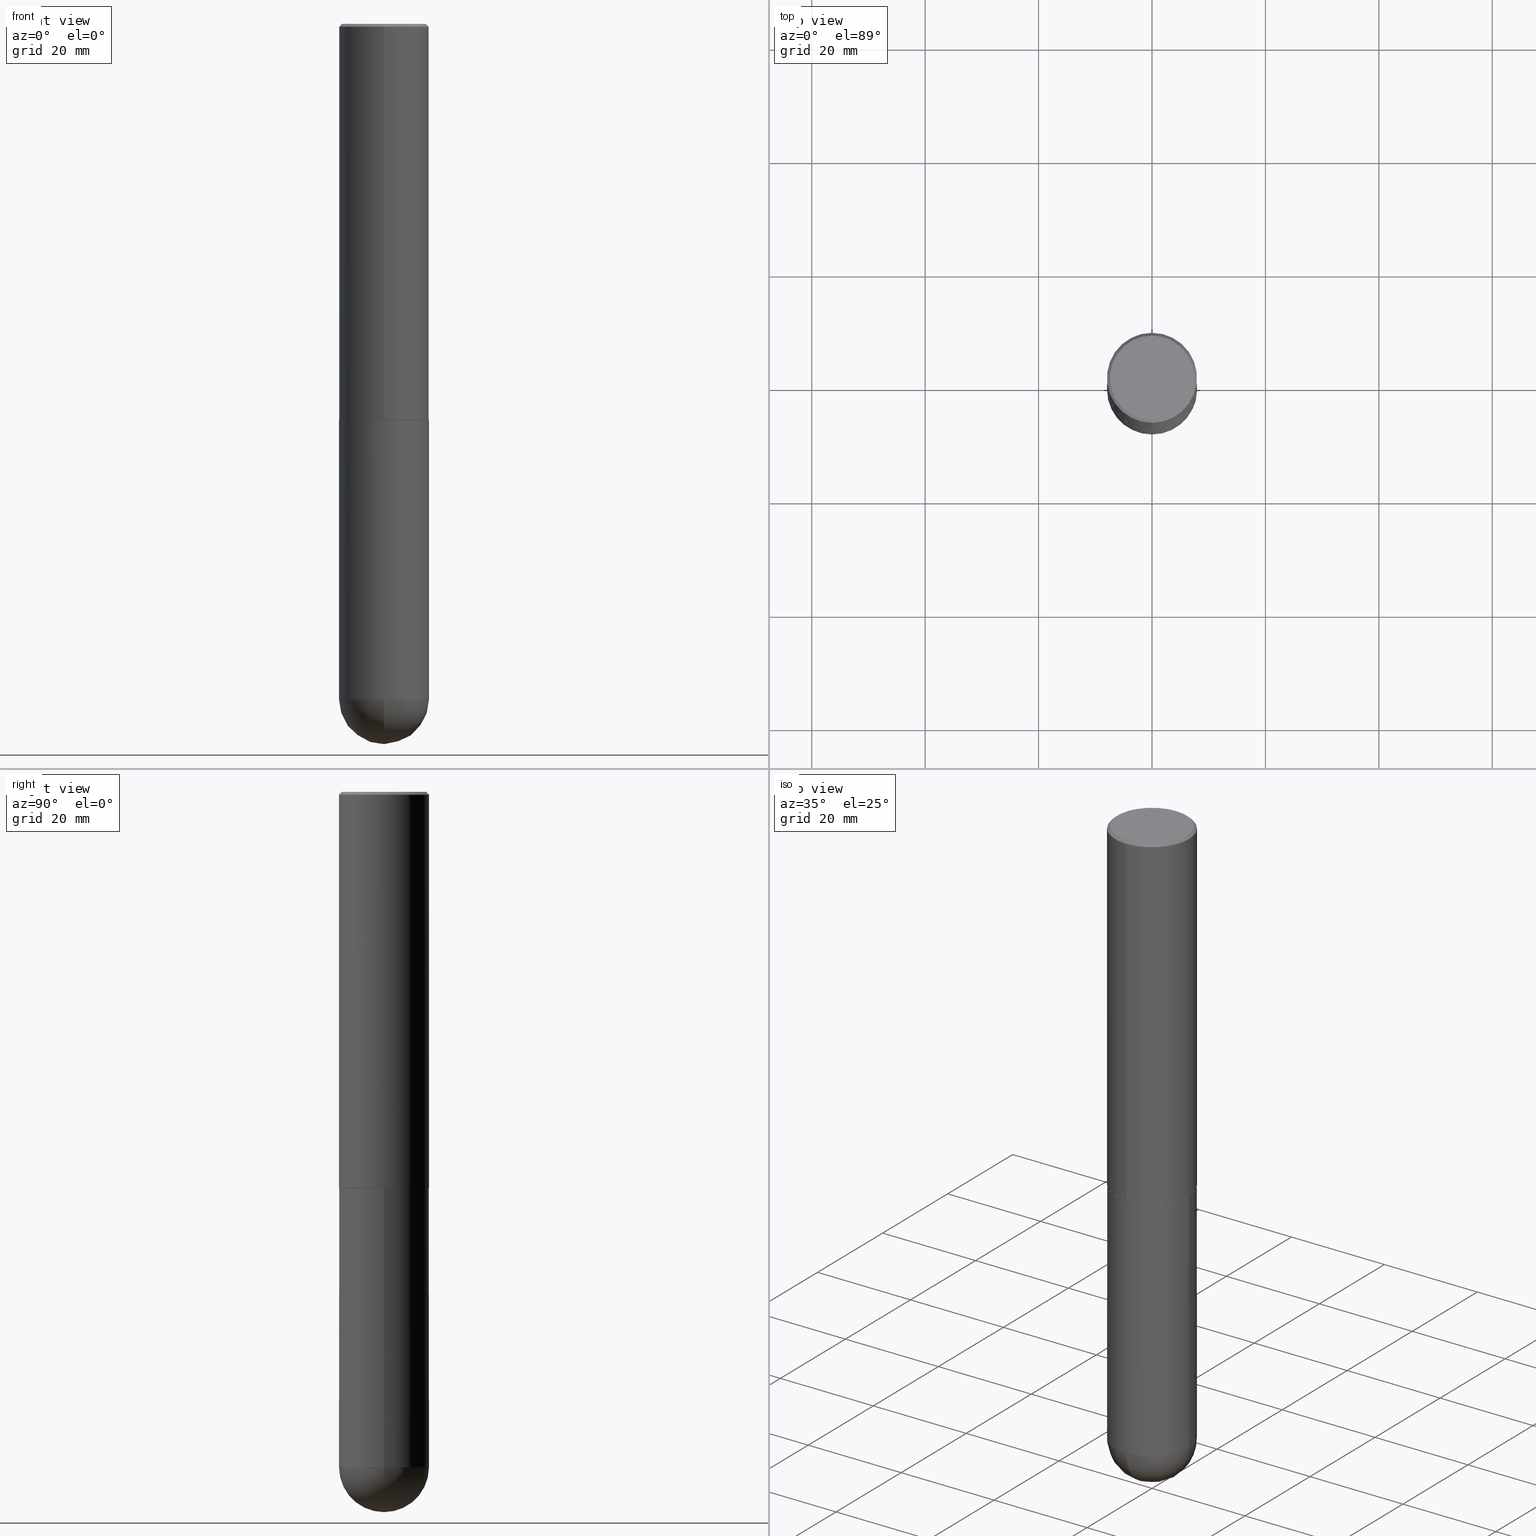
[diagram: canonical four-view strip — front | top / right | iso, engineering-drawing reading convention]
A machine part, canonical four-view strip (front | top / right | iso — engineering-drawing reading convention). The complete STEP part file that produces these views, byte-faithful:
ISO-10303-21;
HEADER;
FILE_DESCRIPTION (( 'STEP AP203' ),
    '1' );
FILE_NAME ('70462.STEP',
    '2024-04-10T12:33:35',
    ( '' ),
    ( '' ),
    'SwSTEP 2.0',
    'SolidWorks 2023',
    '' );
FILE_SCHEMA (( 'CONFIG_CONTROL_DESIGN' ));
ENDSEC;

DATA;
#1 = ORIENTED_EDGE ( 'NONE', *, *, #77, .F. ) ;
#2 = DIRECTION ( 'NONE',  ( 6.982962677686265133E-15, 1.000000000000000000, -3.496765431890256920E-15 ) ) ;
#3 = EDGE_CURVE ( 'NONE', #7, #248, #384, .T. ) ;
#4 = CIRCLE ( 'NONE', #347, 0.3125000000000000000 ) ;
#5 = SECURITY_CLASSIFICATION ( '', '', #247 ) ;
#6 = CLOSED_SHELL ( 'NONE', ( #59, #25, #213, #265, #199, #132, #67, #14 ) ) ;
#7 = VERTEX_POINT ( 'NONE', #350 ) ;
#8 = CARTESIAN_POINT ( 'NONE',  ( 6.723917881373410084E-29, -9.603179498271451211E-15, -2.749999999999999556 ) ) ;
#9 =( NAMED_UNIT ( * ) PLANE_ANGLE_UNIT ( ) SI_UNIT ( $, .RADIAN. ) );
#10 = CARTESIAN_POINT ( 'NONE',  ( 4.066165536435923517E-45, -5.807345985626986545E-31, -1.663011866366634946E-16 ) ) ;
#11 = AXIS2_PLACEMENT_3D ( 'NONE', #232, #190, #32 ) ;
#12 = FACE_OUTER_BOUND ( 'NONE', #181, .T. ) ;
#13 = EDGE_CURVE ( 'NONE', #185, #41, #212, .T. ) ;
#14 = ADVANCED_FACE ( 'NONE', ( #258 ), #315, .F. ) ;
#15 = CONICAL_SURFACE ( 'NONE', #11, 0.3114999999999999991, 0.7853981633977896726 ) ;
#16 = FACE_OUTER_BOUND ( 'NONE', #373, .T. ) ;
#17 = DATE_TIME_ROLE ( 'classification_date' ) ;
#18 = DIRECTION ( 'NONE',  ( -6.982962677686265922E-15, -1.000000000000000000, 3.492065272098710428E-15 ) ) ;
#19 = AXIS2_PLACEMENT_3D ( 'NONE', #251, #277, #366 ) ;
#20 = ORIENTED_EDGE ( 'NONE', *, *, #148, .T. ) ;
#21 = DIRECTION ( 'NONE',  ( -2.445468806185136597E-29, 3.491481338843145583E-15, 1.000000000000000000 ) ) ;
#22 = COORDINATED_UNIVERSAL_TIME_OFFSET ( 5, 0, .BEHIND. ) ;
#23 = CARTESIAN_POINT ( 'NONE',  ( -2.175192874099204491E-15, -0.3115000000000096581, -2.749999999999998224 ) ) ;
#24 = FACE_OUTER_BOUND ( 'NONE', #36, .T. ) ;
#25 = ADVANCED_FACE ( 'NONE', ( #24 ), #149, .T. ) ;
#26 = CARTESIAN_POINT ( 'NONE',  ( -0.3125000000000000000, -1.076350017957263365E-14, -2.750000000000000000 ) ) ;
#27 = AXIS2_PLACEMENT_3D ( 'NONE', #35, #124, #328 ) ;
#28 = DIRECTION ( 'NONE',  ( 6.982962677686265922E-15, 1.000000000000000000, -3.492065272098710033E-15 ) ) ;
#29 = CARTESIAN_POINT ( 'NONE',  ( 0.3125000000000000000, -2.182175836776958347E-15, 1.523805242436230075E-29 ) ) ;
#30 = ORIENTED_EDGE ( 'NONE', *, *, #359, .F. ) ;
#31 = LINE ( 'NONE', #306, #134 ) ;
#32 = DIRECTION ( 'NONE',  ( -6.982962677686265922E-15, -1.000000000000000000, 3.507991003100177457E-15 ) ) ;
#33 = VERTEX_POINT ( 'NONE', #52 ) ;
#34 = DIRECTION ( 'NONE',  ( -6.982962677686265922E-15, -1.000000000000000000, 3.507991003100177457E-15 ) ) ;
#35 = CARTESIAN_POINT ( 'NONE',  ( 1.146313502899282780E-28, -1.636631877582724203E-14, -4.687500000000000000 ) ) ;
#36 = EDGE_LOOP ( 'NONE', ( #150, #262, #244, #145 ) ) ;
#37 = PRODUCT ( '70462', '70462', '', ( #74 ) ) ;
#38 = CC_DESIGN_PERSON_AND_ORGANIZATION_ASSIGNMENT ( #107, #336, ( #50 ) ) ;
#39 = CIRCLE ( 'NONE', #314, 0.2925000000000001488 ) ;
#40 = AXIS2_PLACEMENT_3D ( 'NONE', #298, #399, #303 ) ;
#41 = VERTEX_POINT ( 'NONE', #147 ) ;
#42 = CIRCLE ( 'NONE', #155, 0.3125000000000000000 ) ;
#43 = ORGANIZATION ( 'UNSPECIFIED', 'UNSPECIFIED', '' ) ;
#44 = APPROVAL_DATE_TIME ( #278, #99 ) ;
#45 = DIRECTION ( 'NONE',  ( 2.445061047772150115E-29, -3.492065272098710033E-15, -1.000000000000000000 ) ) ;
#46 = CC_DESIGN_PERSON_AND_ORGANIZATION_ASSIGNMENT ( #393, #208, ( #162 ) ) ;
#47 = PERSON_AND_ORGANIZATION_ROLE ( 'classification_officer' ) ;
#48 = AXIS2_PLACEMENT_3D ( 'NONE', #8, #105, #365 ) ;
#49 = EDGE_CURVE ( 'NONE', #224, #58, #211, .T. ) ;
#50 = PRODUCT_DEFINITION_FORMATION_WITH_SPECIFIED_SOURCE ( 'ANY', '', #37, .NOT_KNOWN. ) ;
#51 = DIRECTION ( 'NONE',  ( -2.445468806185136597E-29, 3.491481338843145583E-15, 1.000000000000000000 ) ) ;
#52 = CARTESIAN_POINT ( 'NONE',  ( -2.220446049250200668E-15, -0.3125000000000168199, -4.687499999999998224 ) ) ;
#53 = DATE_AND_TIME ( #103, #271 ) ;
#54 = SPHERICAL_SURFACE ( 'NONE', #299, 0.3125000000000002776 ) ;
#55 = VERTEX_POINT ( 'NONE', #26 ) ;
#56 = CARTESIAN_POINT ( 'NONE',  ( 2.112346210000096232E-15, 0.2925000000000001488, -1.187730278725536658E-15 ) ) ;
#57 = AXIS2_PLACEMENT_3D ( 'NONE', #152, #21, #126 ) ;
#58 = VERTEX_POINT ( 'NONE', #56 ) ;
#59 = ADVANCED_FACE ( 'NONE', ( #184 ), #228, .T. ) ;
#60 = CARTESIAN_POINT ( 'NONE',  ( 4.066165536435923517E-45, -5.807345985626986545E-31, -1.663011866366634946E-16 ) ) ;
#61 = CARTESIAN_POINT ( 'NONE',  ( 2.182175836776958741E-15, 0.3124999999999999445, -0.02000000000000116268 ) ) ;
#62 = DIRECTION ( 'NONE',  ( 6.982962677686265922E-15, 1.000000000000000000, -3.496765431890253764E-15 ) ) ;
#63 = ORIENTED_EDGE ( 'NONE', *, *, #131, .T. ) ;
#64 = DIRECTION ( 'NONE',  ( -2.445061047772150115E-29, 3.492065272098710033E-15, 1.000000000000000000 ) ) ;
#65 = ORIENTED_EDGE ( 'NONE', *, *, #329, .T. ) ;
#66 = CARTESIAN_POINT ( 'NONE',  ( -2.143905624303602824E-15, -0.3125000000000000555, -0.01999999999999897693 ) ) ;
#67 = ADVANCED_FACE ( 'NONE', ( #343 ), #286, .F. ) ;
#68 = DIRECTION ( 'NONE',  ( 4.937700262164541731E-15, 0.7071067811865442421, -0.7071067811865507924 ) ) ;
#69 = PERSON_AND_ORGANIZATION ( #175, #43 ) ;
#70 = CARTESIAN_POINT ( 'NONE',  ( 0.3125000000000000000, -1.516612206559990666E-14, -4.687500000000000000 ) ) ;
#71 = ADVANCED_FACE ( 'NONE', ( #377 ), #88, .T. ) ;
#72 = PERSON_AND_ORGANIZATION ( #175, #43 ) ;
#73 = CYLINDRICAL_SURFACE ( 'NONE', #146, 0.3125000000000002776 ) ;
#74 = MECHANICAL_CONTEXT ( 'NONE', #167, 'mechanical' ) ;
#75 = CARTESIAN_POINT ( 'NONE',  ( 1.113201525107894267E-28, -1.684050114396729706E-14, -4.687500000000000000 ) ) ;
#76 = CARTESIAN_POINT ( 'NONE',  ( -0.3125000000000000000, -1.076350017957263681E-14, -4.687500000000000000 ) ) ;
#77 = EDGE_CURVE ( 'NONE', #115, #55, #187, .T. ) ;
#78 = APPLICATION_CONTEXT ( 'configuration controlled 3d designs of mechanical parts and assemblies' ) ;
#79 =( GEOMETRIC_REPRESENTATION_CONTEXT ( 3 ) GLOBAL_UNCERTAINTY_ASSIGNED_CONTEXT ( ( #274 ) ) GLOBAL_UNIT_ASSIGNED_CONTEXT ( ( #293, #9, #97 ) ) REPRESENTATION_CONTEXT ( 'NONE', 'WORKASPACE' ) );
#80 = CALENDAR_DATE ( 2024, 10, 4 ) ;
#81 = FACE_OUTER_BOUND ( 'NONE', #226, .T. ) ;
#82 = FACE_OUTER_BOUND ( 'NONE', #289, .T. ) ;
#83 = VERTEX_POINT ( 'NONE', #282 ) ;
#84 = ORIENTED_EDGE ( 'NONE', *, *, #253, .F. ) ;
#85 = PRODUCT_DEFINITION_SHAPE ( 'NONE', 'NONE',  #162 ) ;
#86 = AXIS2_PLACEMENT_3D ( 'NONE', #352, #382, #2 ) ;
#87 = PRODUCT_RELATED_PRODUCT_CATEGORY ( 'detail', '', ( #37 ) ) ;
#88 = SPHERICAL_SURFACE ( 'NONE', #330, 0.3125000000000002776 ) ;
#89 = ORIENTED_EDGE ( 'NONE', *, *, #117, .T. ) ;
#90 = CARTESIAN_POINT ( 'NONE',  ( 6.723917881373410084E-29, -9.603179498271451211E-15, -2.749999999999999556 ) ) ;
#91 = ORIENTED_EDGE ( 'NONE', *, *, #280, .F. ) ;
#92 = DIRECTION ( 'NONE',  ( -2.445468806185136597E-29, 3.491481338843145583E-15, 1.000000000000000000 ) ) ;
#93 = ADVANCED_FACE ( 'NONE', ( #82 ), #406, .T. ) ;
#94 = CC_DESIGN_APPROVAL ( #99, ( #50 ) ) ;
#95 = DIRECTION ( 'NONE',  ( 6.982962677686265922E-15, 1.000000000000000000, -3.496765431890253764E-15 ) ) ;
#96 = AXIS2_PLACEMENT_3D ( 'NONE', #178, #321, #119 ) ;
#97 =( NAMED_UNIT ( * ) SI_UNIT ( $, .STERADIAN. ) SOLID_ANGLE_UNIT ( ) );
#98 = CARTESIAN_POINT ( 'NONE',  ( 0.000000000000000000, 0.000000000000000000, 0.000000000000000000 ) ) ;
#99 = APPROVAL ( #205, 'UNSPECIFIED' ) ;
#100 = APPROVAL_ROLE ( '' ) ;
#101 = AXIS2_PLACEMENT_3D ( 'NONE', #90, #64, #34 ) ;
#102 = MANIFOLD_SOLID_BREP ( 'Body-Move/Copy2[1]', #191 ) ;
#103 = CALENDAR_DATE ( 2024, 10, 4 ) ;
#104 = ORIENTED_EDGE ( 'NONE', *, *, #338, .T. ) ;
#105 = DIRECTION ( 'NONE',  ( -2.445061047772150115E-29, 3.492065272098710033E-15, 1.000000000000000000 ) ) ;
#106 = DIRECTION ( 'NONE',  ( -2.445061047772150115E-29, 3.492065272098710033E-15, 1.000000000000000000 ) ) ;
#107 = PERSON_AND_ORGANIZATION ( #175, #43 ) ;
#108 = ORIENTED_EDGE ( 'NONE', *, *, #318, .F. ) ;
#109 = DIRECTION ( 'NONE',  ( 6.982962677686265922E-15, 1.000000000000000000, 0.000000000000000000 ) ) ;
#110 = CARTESIAN_POINT ( 'NONE',  ( 6.725039217009124520E-29, -9.601573681818649859E-15, -2.750000000000000000 ) ) ;
#111 = CONICAL_SURFACE ( 'NONE', #358, 0.3125000000000000000, 0.7853981633974471688 ) ;
#112 = LOCAL_TIME ( 8, 33, 35.00000000000000000, #396 ) ;
#113 = AXIS2_PLACEMENT_3D ( 'NONE', #374, #371, #403 ) ;
#114 = CARTESIAN_POINT ( 'NONE',  ( 2.042516583223233723E-15, 0.2925000000000001488, -1.104579685407205021E-15 ) ) ;
#115 = VERTEX_POINT ( 'NONE', #76 ) ;
#116 = CARTESIAN_POINT ( 'NONE',  ( 0.000000000000000000, 0.000000000000000000, 0.000000000000000000 ) ) ;
#117 = EDGE_CURVE ( 'NONE', #41, #55, #360, .T. ) ;
#118 = ORIENTED_EDGE ( 'NONE', *, *, #49, .F. ) ;
#119 = DIRECTION ( 'NONE',  ( -6.982962677686265922E-15, -1.000000000000000000, 3.507991003100177457E-15 ) ) ;
#120 = ORIENTED_EDGE ( 'NONE', *, *, #131, .F. ) ;
#121 = VECTOR ( 'NONE', #337, 39.37007874015748143 ) ;
#122 = PLANE ( 'NONE',  #296 ) ;
#123 = ADVANCED_FACE ( 'NONE', ( #81 ), #54, .T. ) ;
#124 = DIRECTION ( 'NONE',  ( -2.445468806185136597E-29, 3.491481338843145583E-15, 1.000000000000000000 ) ) ;
#125 = ORIENTED_EDGE ( 'NONE', *, *, #163, .F. ) ;
#126 = DIRECTION ( 'NONE',  ( 1.000000000000000000, -6.982962677686266711E-15, 4.876176775795936353E-29 ) ) ;
#127 = DIRECTION ( 'NONE',  ( -2.445061047772150115E-29, 3.492065272098710033E-15, 1.000000000000000000 ) ) ;
#128 = VECTOR ( 'NONE', #130, 39.37007874015748143 ) ;
#129 = AXIS2_PLACEMENT_3D ( 'NONE', #332, #51, #261 ) ;
#130 = DIRECTION ( 'NONE',  ( -2.445061047772150115E-29, 3.492065272098710033E-15, 1.000000000000000000 ) ) ;
#131 = EDGE_CURVE ( 'NONE', #115, #33, #221, .T. ) ;
#132 = ADVANCED_FACE ( 'NONE', ( #12 ), #15, .T. ) ;
#133 = AXIS2_PLACEMENT_3D ( 'NONE', #60, #143, #246 ) ;
#134 = VECTOR ( 'NONE', #210, 39.37007874015748143 ) ;
#135 = EDGE_CURVE ( 'NONE', #58, #224, #39, .T. ) ;
#136 = APPROVAL ( #270, 'UNSPECIFIED' ) ;
#137 = PERSON_AND_ORGANIZATION ( #175, #43 ) ;
#138 = DIRECTION ( 'NONE',  ( -2.445061047772150115E-29, 3.492065272098710033E-15, 1.000000000000000000 ) ) ;
#139 = VECTOR ( 'NONE', #245, 39.37007874015748143 ) ;
#140 = FACE_OUTER_BOUND ( 'NONE', #154, .T. ) ;
#141 = DIRECTION ( 'NONE',  ( -2.445468806185136877E-29, 3.491481338843145188E-15, 1.000000000000000000 ) ) ;
#142 = DATE_TIME_ROLE ( 'creation_date' ) ;
#143 = DIRECTION ( 'NONE',  ( -2.445061047772150115E-29, 3.492065272098710033E-15, 1.000000000000000000 ) ) ;
#144 = APPROVAL_ROLE ( '' ) ;
#145 = ORIENTED_EDGE ( 'NONE', *, *, #397, .F. ) ;
#146 = AXIS2_PLACEMENT_3D ( 'NONE', #98, #168, #18 ) ;
#147 = CARTESIAN_POINT ( 'NONE',  ( 0.3125000000000000000, -1.178374951859560978E-14, -2.750000000000000000 ) ) ;
#148 = EDGE_CURVE ( 'NONE', #33, #185, #171, .T. ) ;
#149 = CYLINDRICAL_SURFACE ( 'NONE', #249, 0.3125000000000002776 ) ;
#150 = ORIENTED_EDGE ( 'NONE', *, *, #3, .T. ) ;
#151 = EDGE_CURVE ( 'NONE', #58, #316, #194, .T. ) ;
#152 = CARTESIAN_POINT ( 'NONE',  ( 0.000000000000000000, 0.000000000000000000, 0.000000000000000000 ) ) ;
#153 = VECTOR ( 'NONE', #412, 39.37007874015748143 ) ;
#154 = EDGE_LOOP ( 'NONE', ( #89, #381 ) ) ;
#155 = AXIS2_PLACEMENT_3D ( 'NONE', #290, #281, #327 ) ;
#156 = DIRECTION ( 'NONE',  ( 1.000000000000000000, -6.982962677686269077E-15, 0.000000000000000000 ) ) ;
#157 = LOCAL_TIME ( 8, 33, 35.00000000000000000, #236 ) ;
#158 = EDGE_CURVE ( 'NONE', #248, #316, #387, .T. ) ;
#159 = ADVANCED_BREP_SHAPE_REPRESENTATION ( '70462', ( #102, #235, #40 ), #79 ) ;
#160 = ORIENTED_EDGE ( 'NONE', *, *, #13, .F. ) ;
#161 = LINE ( 'NONE', #66, #139 ) ;
#162 = PRODUCT_DEFINITION ( 'UNKNOWN', '', #50, #313 ) ;
#163 = EDGE_CURVE ( 'NONE', #248, #7, #339, .T. ) ;
#164 = VECTOR ( 'NONE', #186, 39.37007874015748143 ) ;
#165 = APPROVAL_DATE_TIME ( #238, #136 ) ;
#166 = DIRECTION ( 'NONE',  ( 6.982962677686265133E-15, 1.000000000000000000, -3.496765431890256920E-15 ) ) ;
#167 = APPLICATION_CONTEXT ( 'configuration controlled 3d designs of mechanical parts and assemblies' ) ;
#168 = DIRECTION ( 'NONE',  ( -2.445061047772150115E-29, 3.492065272098710033E-15, 1.000000000000000000 ) ) ;
#169 = DATE_AND_TIME ( #307, #172 ) ;
#170 =( LENGTH_UNIT ( ) NAMED_UNIT ( * ) SI_UNIT ( $, .METRE. ) );
#171 = CIRCLE ( 'NONE', #27, 0.3125000000000000000 ) ;
#172 = LOCAL_TIME ( 8, 33, 35.00000000000000000, #204 ) ;
#173 = PERSON_AND_ORGANIZATION_ROLE ( 'design_owner' ) ;
#174 = ORIENTED_EDGE ( 'NONE', *, *, #400, .F. ) ;
#175 = PERSON ( 'UNSPECIFIED', 'UNSPECIFIED', 'UNSPECIFIED', ('UNSPECIFIED'), ('UNSPECIFIED'), ('UNSPECIFIED') ) ;
#176 = VERTEX_POINT ( 'NONE', #301 ) ;
#177 = DATE_AND_TIME ( #80, #240 ) ;
#178 = CARTESIAN_POINT ( 'NONE',  ( 6.723917881373410084E-29, -9.603179498271451211E-15, -2.749999999999999556 ) ) ;
#179 = ORIENTED_EDGE ( 'NONE', *, *, #234, .T. ) ;
#180 = CC_DESIGN_DATE_AND_TIME_ASSIGNMENT ( #53, #142, ( #162 ) ) ;
#181 = EDGE_LOOP ( 'NONE', ( #30, #344, #65, #125 ) ) ;
#182 = CIRCLE ( 'NONE', #239, 0.3125000000000002776 ) ;
#183 = VERTEX_POINT ( 'NONE', #242 ) ;
#184 = FACE_OUTER_BOUND ( 'NONE', #322, .T. ) ;
#185 = VERTEX_POINT ( 'NONE', #70 ) ;
#186 = DIRECTION ( 'NONE',  ( -4.937700262166233838E-15, -0.7071067811867864927, 0.7071067811863085417 ) ) ;
#187 = LINE ( 'NONE', #317, #324 ) ;
#188 = ORIENTED_EDGE ( 'NONE', *, *, #338, .F. ) ;
#189 = FACE_OUTER_BOUND ( 'NONE', #409, .T. ) ;
#190 = DIRECTION ( 'NONE',  ( -2.445061047772150115E-29, 3.492065272098710033E-15, 1.000000000000000000 ) ) ;
#191 = CLOSED_SHELL ( 'NONE', ( #93, #123, #71, #380, #363 ) ) ;
#192 = ORIENTED_EDGE ( 'NONE', *, *, #291, .F. ) ;
#193 = LENGTH_MEASURE_WITH_UNIT ( LENGTH_MEASURE( 0.02539999999999999897 ), #170 );
#194 = LINE ( 'NONE', #385, #203 ) ;
#195 = DIRECTION ( 'NONE',  ( -2.445468806185136597E-29, 3.491481338843145583E-15, 1.000000000000000000 ) ) ;
#196 = CC_DESIGN_DATE_AND_TIME_ASSIGNMENT ( #169, #17, ( #5 ) ) ;
#197 = CIRCLE ( 'NONE', #268, 0.3125000000000002776 ) ;
#198 = ORIENTED_EDGE ( 'NONE', *, *, #151, .T. ) ;
#199 = ADVANCED_FACE ( 'NONE', ( #16 ), #73, .T. ) ;
#200 = DIMENSIONAL_EXPONENTS ( 1.000000000000000000, 0.000000000000000000, 0.000000000000000000, 0.000000000000000000, 0.000000000000000000, 0.000000000000000000, 0.000000000000000000 ) ;
#201 = DIRECTION ( 'NONE',  ( -6.982962677686265922E-15, -1.000000000000000000, 3.496765431890251398E-15 ) ) ;
#202 = PERSON_AND_ORGANIZATION ( #175, #43 ) ;
#203 = VECTOR ( 'NONE', #68, 39.37007874015748143 ) ;
#204 = COORDINATED_UNIVERSAL_TIME_OFFSET ( 5, 0, .BEHIND. ) ;
#205 = APPROVAL_STATUS ( 'not_yet_approved' ) ;
#206 = FACE_OUTER_BOUND ( 'NONE', #351, .T. ) ;
#207 = CC_DESIGN_PERSON_AND_ORGANIZATION_ASSIGNMENT ( #364, #47, ( #5 ) ) ;
#208 = PERSON_AND_ORGANIZATION_ROLE ( 'creator' ) ;
#209 = EDGE_LOOP ( 'NONE', ( #108, #376 ) ) ;
#210 = DIRECTION ( 'NONE',  ( 5.024295867789777373E-15, 0.7071067811867913777, 0.7071067811863036567 ) ) ;
#211 = CIRCLE ( 'NONE', #133, 0.2925000000000001488 ) ;
#212 = LINE ( 'NONE', #29, #153 ) ;
#213 = ADVANCED_FACE ( 'NONE', ( #394 ), #111, .T. ) ;
#214 = APPLICATION_PROTOCOL_DEFINITION ( 'international standard', 'config_control_design', 1994, #78 ) ;
#215 = ORIENTED_EDGE ( 'NONE', *, *, #329, .F. ) ;
#216 = CARTESIAN_POINT ( 'NONE',  ( 1.146313502899282780E-28, -1.636631877582724203E-14, -4.687500000000000000 ) ) ;
#217 = ORIENTED_EDGE ( 'NONE', *, *, #49, .T. ) ;
#218 = DIRECTION ( 'NONE',  ( 1.000000000000000000, -6.982962677686269077E-15, 0.000000000000000000 ) ) ;
#219 = ORIENTED_EDGE ( 'NONE', *, *, #253, .T. ) ;
#220 = DIRECTION ( 'NONE',  ( 2.445061047772149554E-29, -3.492065272098710033E-15, -1.000000000000000000 ) ) ;
#221 = CIRCLE ( 'NONE', #369, 0.3125000000000000000 ) ;
#222 = DIRECTION ( 'NONE',  ( -1.000000000000000000, 7.105427357601001070E-15, -4.926315508542082329E-29 ) ) ;
#223 = DIRECTION ( 'NONE',  ( -1.000000000000000000, 6.982962677686265922E-15, -4.883557194083112901E-29 ) ) ;
#224 = VERTEX_POINT ( 'NONE', #302 ) ;
#225 = CARTESIAN_POINT ( 'NONE',  ( 2.182175836777025400E-15, 0.3124999999999903966, -2.750000000000000888 ) ) ;
#226 = EDGE_LOOP ( 'NONE', ( #257, #104, #120, #91 ) ) ;
#227 = CARTESIAN_POINT ( 'NONE',  ( -2.182175836776959925E-15, -0.3125000000000002776, 1.091270397530848019E-15 ) ) ;
#228 = CONICAL_SURFACE ( 'NONE', #96, 0.3114999999999999991, 0.7853981633977896726 ) ;
#229 = AXIS2_PLACEMENT_3D ( 'NONE', #349, #92, #156 ) ;
#230 = CC_DESIGN_APPROVAL ( #136, ( #162 ) ) ;
#231 = DIRECTION ( 'NONE',  ( -6.982962677686265922E-15, -1.000000000000000000, 3.492065272098710033E-15 ) ) ;
#232 = CARTESIAN_POINT ( 'NONE',  ( 6.723917881373410084E-29, -9.603179498271451211E-15, -2.749999999999999556 ) ) ;
#233 = CC_DESIGN_SECURITY_CLASSIFICATION ( #5, ( #50 ) ) ;
#234 = EDGE_CURVE ( 'NONE', #368, #316, #356, .T. ) ;
#235 = MANIFOLD_SOLID_BREP ( 'Body-Move/Copy2[2]', #6 ) ;
#236 = COORDINATED_UNIVERSAL_TIME_OFFSET ( 5, 0, .BEHIND. ) ;
#237 = EDGE_LOOP ( 'NONE', ( #118, #346, #179, #411 ) ) ;
#238 = DATE_AND_TIME ( #404, #112 ) ;
#239 = AXIS2_PLACEMENT_3D ( 'NONE', #75, #222, #320 ) ;
#240 = LOCAL_TIME ( 8, 33, 35.00000000000000000, #22 ) ;
#241 = CARTESIAN_POINT ( 'NONE',  ( 4.890122095544317046E-31, -6.984130544197443732E-17, -0.02000000000000006981 ) ) ;
#242 = CARTESIAN_POINT ( 'NONE',  ( -2.175192874099204491E-15, -0.3115000000000096581, -2.749999999999998224 ) ) ;
#243 = APPROVAL_ROLE ( '' ) ;
#244 = ORIENTED_EDGE ( 'NONE', *, *, #234, .F. ) ;
#245 = DIRECTION ( 'NONE',  ( -4.851104656540957964E-15, -0.7071067811865491270, -0.7071067811865459074 ) ) ;
#246 = DIRECTION ( 'NONE',  ( -6.982962677686265922E-15, -1.000000000000000000, 3.492065272098710033E-15 ) ) ;
#247 = SECURITY_CLASSIFICATION_LEVEL ( 'unclassified' ) ;
#248 = VERTEX_POINT ( 'NONE', #398 ) ;
#249 = AXIS2_PLACEMENT_3D ( 'NONE', #116, #106, #348 ) ;
#250 = AXIS2_PLACEMENT_3D ( 'NONE', #267, #357, #201 ) ;
#251 = CARTESIAN_POINT ( 'NONE',  ( 0.000000000000000000, 0.000000000000000000, 0.000000000000000000 ) ) ;
#252 = APPROVAL_PERSON_ORGANIZATION ( #137, #388, #243 ) ;
#253 = EDGE_CURVE ( 'NONE', #185, #83, #259, .T. ) ;
#254 = DIRECTION ( 'NONE',  ( -2.445061047772149554E-29, 3.492065272098710033E-15, 1.000000000000000000 ) ) ;
#255 = ORIENTED_EDGE ( 'NONE', *, *, #77, .T. ) ;
#256 = ORIENTED_EDGE ( 'NONE', *, *, #135, .F. ) ;
#257 = ORIENTED_EDGE ( 'NONE', *, *, #408, .F. ) ;
#258 = FACE_OUTER_BOUND ( 'NONE', #292, .T. ) ;
#259 = CIRCLE ( 'NONE', #129, 0.3125000000000000000 ) ;
#260 = ORIENTED_EDGE ( 'NONE', *, *, #158, .F. ) ;
#261 = DIRECTION ( 'NONE',  ( 1.000000000000000000, -6.982962677686269077E-15, 0.000000000000000000 ) ) ;
#262 = ORIENTED_EDGE ( 'NONE', *, *, #158, .T. ) ;
#263 = LINE ( 'NONE', #227, #121 ) ;
#264 = DIRECTION ( 'NONE',  ( -1.000000000000000000, 6.982962677686265922E-15, -4.883557194083112901E-29 ) ) ;
#265 = ADVANCED_FACE ( 'NONE', ( #189 ), #362, .T. ) ;
#266 = APPROVAL_PERSON_ORGANIZATION ( #69, #99, #100 ) ;
#267 = CARTESIAN_POINT ( 'NONE',  ( 6.721472820325638787E-29, -9.599687432999352568E-15, -2.748999999999999666 ) ) ;
#268 = AXIS2_PLACEMENT_3D ( 'NONE', #402, #354, #109 ) ;
#269 = EDGE_CURVE ( 'NONE', #55, #41, #305, .T. ) ;
#270 = APPROVAL_STATUS ( 'not_yet_approved' ) ;
#271 = LOCAL_TIME ( 8, 33, 35.00000000000000000, #342 ) ;
#272 = DIRECTION ( 'NONE',  ( -6.982962677686265133E-15, -1.000000000000000000, 3.496765431890256920E-15 ) ) ;
#273 = PERSON_AND_ORGANIZATION_ROLE ( 'design_supplier' ) ;
#274 = UNCERTAINTY_MEASURE_WITH_UNIT (LENGTH_MEASURE( 1.000000000000000082E-05 ), #293, 'distance_accuracy_value', 'NONE');
#275 = ORIENTED_EDGE ( 'NONE', *, *, #400, .T. ) ;
#276 = CARTESIAN_POINT ( 'NONE',  ( 4.890122095544317046E-31, -6.984130544197443732E-17, -0.02000000000000006981 ) ) ;
#277 = DIRECTION ( 'NONE',  ( -2.445468806185136597E-29, 3.491481338843145583E-15, 1.000000000000000000 ) ) ;
#278 = DATE_AND_TIME ( #361, #157 ) ;
#279 = ORIENTED_EDGE ( 'NONE', *, *, #280, .T. ) ;
#280 = EDGE_CURVE ( 'NONE', #83, #115, #42, .T. ) ;
#281 = DIRECTION ( 'NONE',  ( -2.445468806185136597E-29, 3.491481338843145583E-15, 1.000000000000000000 ) ) ;
#282 = CARTESIAN_POINT ( 'NONE',  ( 2.182175836777072337E-15, 0.3124999999999835132, -4.687500000000000888 ) ) ;
#283 = ORIENTED_EDGE ( 'NONE', *, *, #269, .F. ) ;
#284 = AXIS2_PLACEMENT_3D ( 'NONE', #110, #370, #218 ) ;
#285 = ORIENTED_EDGE ( 'NONE', *, *, #3, .F. ) ;
#286 = PLANE ( 'NONE',  #355 ) ;
#287 = ORIENTED_EDGE ( 'NONE', *, *, #117, .F. ) ;
#288 = CARTESIAN_POINT ( 'NONE',  ( -2.143905624303602824E-15, -0.3125000000000000555, -0.01999999999999897693 ) ) ;
#289 = EDGE_LOOP ( 'NONE', ( #279, #255, #287, #160, #219 ) ) ;
#290 = CARTESIAN_POINT ( 'NONE',  ( 1.146313502899282780E-28, -1.636631877582724203E-14, -4.687500000000000000 ) ) ;
#291 = EDGE_CURVE ( 'NONE', #224, #368, #161, .T. ) ;
#292 = EDGE_LOOP ( 'NONE', ( #319, #217 ) ) ;
#293 =( CONVERSION_BASED_UNIT ( 'INCH', #193 ) LENGTH_UNIT ( ) NAMED_UNIT ( #200 ) );
#294 = CC_DESIGN_PERSON_AND_ORGANIZATION_ASSIGNMENT ( #72, #173, ( #37 ) ) ;
#295 = CARTESIAN_POINT ( 'NONE',  ( 2.220446049250314659E-15, 0.3125000000000002776, -1.091270397530848019E-15 ) ) ;
#296 = AXIS2_PLACEMENT_3D ( 'NONE', #225, #308, #379 ) ;
#297 = ORIENTED_EDGE ( 'NONE', *, *, #13, .T. ) ;
#298 = CARTESIAN_POINT ( 'NONE',  ( 0.000000000000000000, 0.000000000000000000, 0.000000000000000000 ) ) ;
#299 = AXIS2_PLACEMENT_3D ( 'NONE', #407, #264, #95 ) ;
#300 = EDGE_LOOP ( 'NONE', ( #188, #309, #84, #401 ) ) ;
#301 = CARTESIAN_POINT ( 'NONE',  ( 1.190958622628022629E-28, -1.791245395611910360E-14, -5.000000000000000000 ) ) ;
#302 = CARTESIAN_POINT ( 'NONE',  ( -2.075300644325888282E-15, -0.2925000000000001488, 8.551279054522098163E-16 ) ) ;
#303 = DIRECTION ( 'NONE',  ( 1.000000000000000000, 0.000000000000000000, 0.000000000000000000 ) ) ;
#304 = SHAPE_DEFINITION_REPRESENTATION ( #85, #159 ) ;
#305 = CIRCLE ( 'NONE', #229, 0.3125000000000000000 ) ;
#306 = CARTESIAN_POINT ( 'NONE',  ( 2.213340621892779126E-15, 0.3114999999999903957, -2.750000000000000444 ) ) ;
#307 = CALENDAR_DATE ( 2024, 10, 4 ) ;
#308 = DIRECTION ( 'NONE',  ( 2.438088387897960049E-29, -3.491481338843145188E-15, -1.000000000000000000 ) ) ;
#309 = ORIENTED_EDGE ( 'NONE', *, *, #408, .T. ) ;
#310 = APPROVAL_DATE_TIME ( #177, #388 ) ;
#311 = ORIENTED_EDGE ( 'NONE', *, *, #163, .T. ) ;
#312 = DIRECTION ( 'NONE',  ( -6.982962677686265922E-15, -1.000000000000000000, 3.492065272098710033E-15 ) ) ;
#313 = DESIGN_CONTEXT ( 'detailed design', #78, 'design' ) ;
#314 = AXIS2_PLACEMENT_3D ( 'NONE', #10, #127, #231 ) ;
#315 = PLANE ( 'NONE',  #390 ) ;
#316 = VERTEX_POINT ( 'NONE', #61 ) ;
#317 = CARTESIAN_POINT ( 'NONE',  ( -0.3125000000000000000, 2.220446049250313081E-15, -1.537167215704658232E-29 ) ) ;
#318 = EDGE_CURVE ( 'NONE', #183, #378, #386, .T. ) ;
#319 = ORIENTED_EDGE ( 'NONE', *, *, #135, .T. ) ;
#320 = DIRECTION ( 'NONE',  ( -7.105427357601000281E-15, -1.000000000000000000, 0.000000000000000000 ) ) ;
#321 = DIRECTION ( 'NONE',  ( -2.445061047772150115E-29, 3.492065272098710033E-15, 1.000000000000000000 ) ) ;
#322 = EDGE_LOOP ( 'NONE', ( #326, #353, #285, #215 ) ) ;
#323 = LINE ( 'NONE', #23, #164 ) ;
#324 = VECTOR ( 'NONE', #141, 39.37007874015748143 ) ;
#325 = CC_DESIGN_APPROVAL ( #388, ( #5 ) ) ;
#326 = ORIENTED_EDGE ( 'NONE', *, *, #318, .T. ) ;
#327 = DIRECTION ( 'NONE',  ( 1.000000000000000000, -6.982962677686269077E-15, 0.000000000000000000 ) ) ;
#328 = DIRECTION ( 'NONE',  ( 1.000000000000000000, -6.982962677686269077E-15, 0.000000000000000000 ) ) ;
#329 = EDGE_CURVE ( 'NONE', #183, #7, #323, .T. ) ;
#330 = AXIS2_PLACEMENT_3D ( 'NONE', #341, #223, #62 ) ;
#331 = APPROVAL_PERSON_ORGANIZATION ( #395, #136, #144 ) ;
#332 = CARTESIAN_POINT ( 'NONE',  ( 1.146313502899282780E-28, -1.636631877582724203E-14, -4.687500000000000000 ) ) ;
#333 = APPLICATION_PROTOCOL_DEFINITION ( 'international standard', 'config_control_design', 1994, #167 ) ;
#334 = AXIS2_PLACEMENT_3D ( 'NONE', #241, #138, #272 ) ;
#335 = CARTESIAN_POINT ( 'NONE',  ( 4.890122095544317046E-31, -6.984130544197443732E-17, -0.02000000000000006981 ) ) ;
#336 = PERSON_AND_ORGANIZATION_ROLE ( 'creator' ) ;
#337 = DIRECTION ( 'NONE',  ( -2.445061047772150115E-29, 3.492065272098710033E-15, 1.000000000000000000 ) ) ;
#338 = EDGE_CURVE ( 'NONE', #176, #33, #182, .T. ) ;
#339 = CIRCLE ( 'NONE', #250, 0.3125000000000004996 ) ;
#340 = DIRECTION ( 'NONE',  ( -6.982962677686265133E-15, -1.000000000000000000, 3.496765431890256920E-15 ) ) ;
#341 = CARTESIAN_POINT ( 'NONE',  ( 1.113201525107894267E-28, -1.684050114396729706E-14, -4.687500000000000000 ) ) ;
#342 = COORDINATED_UNIVERSAL_TIME_OFFSET ( 5, 0, .BEHIND. ) ;
#343 = FACE_OUTER_BOUND ( 'NONE', #209, .T. ) ;
#344 = ORIENTED_EDGE ( 'NONE', *, *, #392, .T. ) ;
#345 = ORIENTED_EDGE ( 'NONE', *, *, #397, .T. ) ;
#346 = ORIENTED_EDGE ( 'NONE', *, *, #291, .T. ) ;
#347 = AXIS2_PLACEMENT_3D ( 'NONE', #276, #375, #340 ) ;
#348 = DIRECTION ( 'NONE',  ( -6.982962677686265922E-15, -1.000000000000000000, 3.492065272098710428E-15 ) ) ;
#349 = CARTESIAN_POINT ( 'NONE',  ( 6.725039217009124520E-29, -9.601573681818649859E-15, -2.750000000000000000 ) ) ;
#350 = CARTESIAN_POINT ( 'NONE',  ( -2.182175836776894449E-15, -0.3125000000000101030, -2.748999999999998334 ) ) ;
#351 = EDGE_LOOP ( 'NONE', ( #1, #63, #20, #297, #283 ) ) ;
#352 = CARTESIAN_POINT ( 'NONE',  ( 4.890122095544317046E-31, -6.984130544197443732E-17, -0.02000000000000006981 ) ) ;
#353 = ORIENTED_EDGE ( 'NONE', *, *, #359, .T. ) ;
#354 = DIRECTION ( 'NONE',  ( 1.000000000000000000, -6.982962677686265922E-15, 4.883557194083112340E-29 ) ) ;
#355 = AXIS2_PLACEMENT_3D ( 'NONE', #410, #254, #312 ) ;
#356 = CIRCLE ( 'NONE', #334, 0.3125000000000000000 ) ;
#357 = DIRECTION ( 'NONE',  ( -2.445061047772150115E-29, 3.492065272098710033E-15, 1.000000000000000000 ) ) ;
#358 = AXIS2_PLACEMENT_3D ( 'NONE', #335, #45, #166 ) ;
#359 = EDGE_CURVE ( 'NONE', #378, #248, #31, .T. ) ;
#360 = CIRCLE ( 'NONE', #284, 0.3125000000000000000 ) ;
#361 = CALENDAR_DATE ( 2024, 10, 4 ) ;
#362 = CONICAL_SURFACE ( 'NONE', #86, 0.3125000000000000000, 0.7853981633974471688 ) ;
#363 = ADVANCED_FACE ( 'NONE', ( #206 ), #405, .T. ) ;
#364 = PERSON_AND_ORGANIZATION ( #175, #43 ) ;
#365 = DIRECTION ( 'NONE',  ( -6.982962677686265922E-15, -1.000000000000000000, 3.507991003100177457E-15 ) ) ;
#366 = DIRECTION ( 'NONE',  ( 1.000000000000000000, -6.982962677686266711E-15, 4.876176775795936353E-29 ) ) ;
#367 = APPROVAL_STATUS ( 'not_yet_approved' ) ;
#368 = VERTEX_POINT ( 'NONE', #288 ) ;
#369 = AXIS2_PLACEMENT_3D ( 'NONE', #216, #195, #389 ) ;
#370 = DIRECTION ( 'NONE',  ( -2.445468806185136597E-29, 3.491481338843145583E-15, 1.000000000000000000 ) ) ;
#371 = DIRECTION ( 'NONE',  ( -2.445061047772150115E-29, 3.492065272098710033E-15, 1.000000000000000000 ) ) ;
#372 = CC_DESIGN_PERSON_AND_ORGANIZATION_ASSIGNMENT ( #202, #273, ( #50 ) ) ;
#373 = EDGE_LOOP ( 'NONE', ( #260, #311, #345, #174 ) ) ;
#374 = CARTESIAN_POINT ( 'NONE',  ( 6.721472820325638787E-29, -9.599687432999352568E-15, -2.748999999999999666 ) ) ;
#375 = DIRECTION ( 'NONE',  ( -2.445061047772150115E-29, 3.492065272098710033E-15, 1.000000000000000000 ) ) ;
#376 = ORIENTED_EDGE ( 'NONE', *, *, #392, .F. ) ;
#377 = FACE_OUTER_BOUND ( 'NONE', #300, .T. ) ;
#378 = VERTEX_POINT ( 'NONE', #383 ) ;
#379 = DIRECTION ( 'NONE',  ( -1.000000000000000000, 6.982962677686265922E-15, -4.876176775795935793E-29 ) ) ;
#380 = ADVANCED_FACE ( 'NONE', ( #140 ), #122, .F. ) ;
#381 = ORIENTED_EDGE ( 'NONE', *, *, #269, .T. ) ;
#382 = DIRECTION ( 'NONE',  ( 2.445061047772150115E-29, -3.492065272098710033E-15, -1.000000000000000000 ) ) ;
#383 = CARTESIAN_POINT ( 'NONE',  ( 2.216893335571581208E-15, 0.3114999999999903957, -2.750000000000000444 ) ) ;
#384 = CIRCLE ( 'NONE', #113, 0.3125000000000004996 ) ;
#385 = CARTESIAN_POINT ( 'NONE',  ( 2.182175836776958741E-15, 0.3124999999999999445, -0.02000000000000116268 ) ) ;
#386 = CIRCLE ( 'NONE', #48, 0.3114999999999999991 ) ;
#387 = LINE ( 'NONE', #295, #128 ) ;
#388 = APPROVAL ( #367, 'UNSPECIFIED' ) ;
#389 = DIRECTION ( 'NONE',  ( 1.000000000000000000, -6.982962677686269077E-15, 0.000000000000000000 ) ) ;
#390 = AXIS2_PLACEMENT_3D ( 'NONE', #114, #220, #28 ) ;
#391 = CIRCLE ( 'NONE', #101, 0.3114999999999999991 ) ;
#392 = EDGE_CURVE ( 'NONE', #378, #183, #391, .T. ) ;
#393 = PERSON_AND_ORGANIZATION ( #175, #43 ) ;
#394 = FACE_OUTER_BOUND ( 'NONE', #237, .T. ) ;
#395 = PERSON_AND_ORGANIZATION ( #175, #43 ) ;
#396 = COORDINATED_UNIVERSAL_TIME_OFFSET ( 5, 0, .BEHIND. ) ;
#397 = EDGE_CURVE ( 'NONE', #7, #368, #263, .T. ) ;
#398 = CARTESIAN_POINT ( 'NONE',  ( 2.220446049250349763E-15, 0.3124999999999908407, -2.749000000000000554 ) ) ;
#399 = DIRECTION ( 'NONE',  ( 0.000000000000000000, 0.000000000000000000, 1.000000000000000000 ) ) ;
#400 = EDGE_CURVE ( 'NONE', #316, #368, #4, .T. ) ;
#401 = ORIENTED_EDGE ( 'NONE', *, *, #148, .F. ) ;
#402 = CARTESIAN_POINT ( 'NONE',  ( 1.113201525107894267E-28, -1.684050114396729706E-14, -4.687500000000000000 ) ) ;
#403 = DIRECTION ( 'NONE',  ( -6.982962677686265922E-15, -1.000000000000000000, 3.496765431890251398E-15 ) ) ;
#404 = CALENDAR_DATE ( 2024, 10, 4 ) ;
#405 = CYLINDRICAL_SURFACE ( 'NONE', #57, 0.3125000000000000000 ) ;
#406 = CYLINDRICAL_SURFACE ( 'NONE', #19, 0.3125000000000000000 ) ;
#407 = CARTESIAN_POINT ( 'NONE',  ( 1.113201525107894267E-28, -1.684050114396729706E-14, -4.687500000000000000 ) ) ;
#408 = EDGE_CURVE ( 'NONE', #176, #83, #197, .T. ) ;
#409 = EDGE_LOOP ( 'NONE', ( #192, #256, #198, #275 ) ) ;
#410 = CARTESIAN_POINT ( 'NONE',  ( 6.723917881373411205E-29, -9.603179498271452789E-15, -2.750000000000000000 ) ) ;
#411 = ORIENTED_EDGE ( 'NONE', *, *, #151, .F. ) ;
#412 = DIRECTION ( 'NONE',  ( -2.445468806185136877E-29, 3.491481338843145188E-15, 1.000000000000000000 ) ) ;
ENDSEC;
END-ISO-10303-21;
